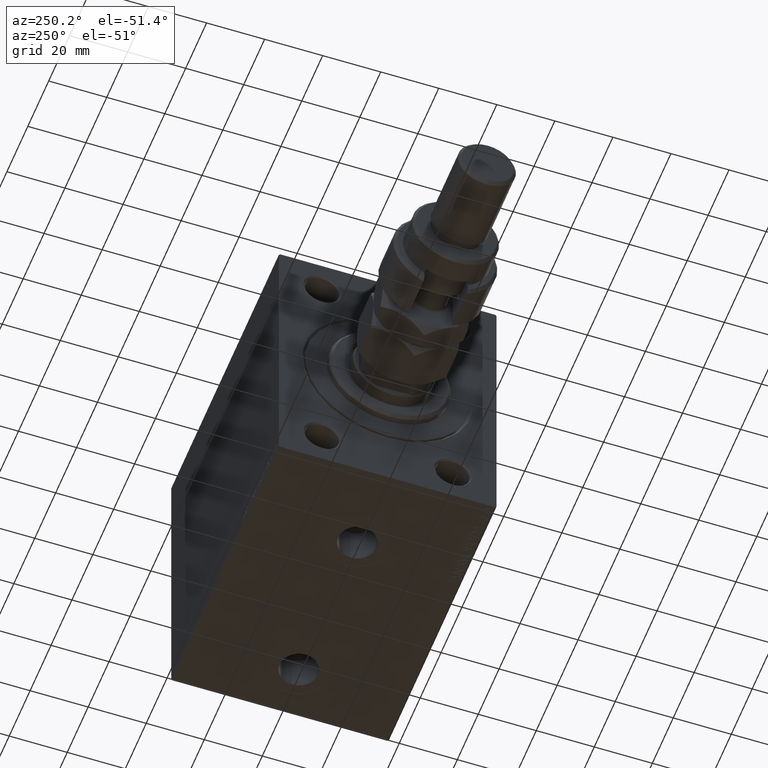
[diagram: clean part render]
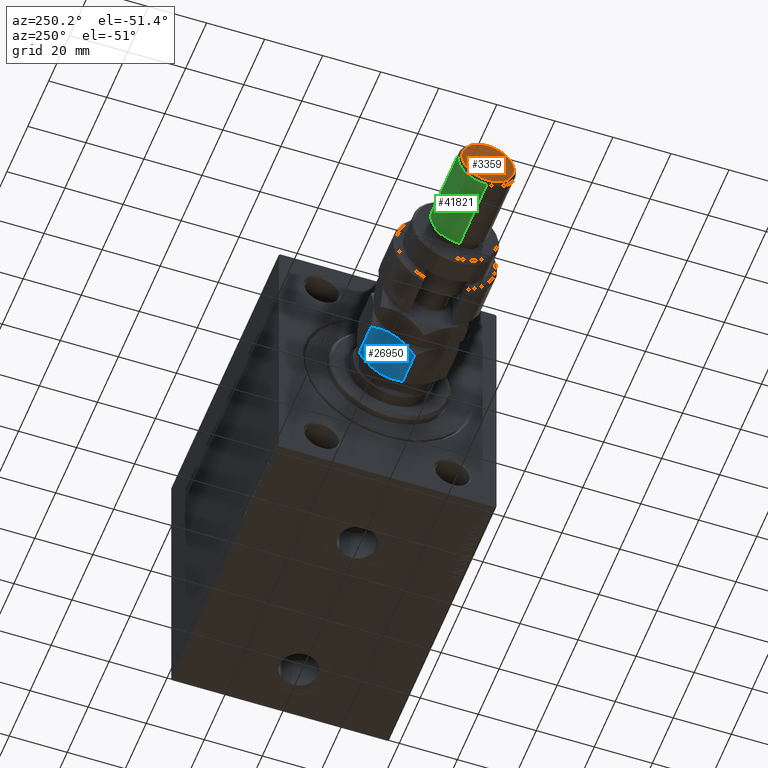
[diagram: same view with three faces highlighted in distinct colors, each labeled with its STEP entity id]
A machine part, auxiliary view with three faces highlighted in distinct colors.
Their STEP definitions:

[orange] entity #3359 — the highlighted planar face has unit normal (-1, 0, 0).
#9 = EDGE_CURVE ( 'NONE', #27824, #30673, #6786, .T. ) ;
#2491 = AXIS2_PLACEMENT_3D ( 'NONE', #33125, #48566, #14691 ) ;
#3359 = ADVANCED_FACE ( 'NONE', ( #46317 ), #12684, .T. ) ;
#6786 = CIRCLE ( 'NONE', #28704, 8.999999999999987566 ) ;
#7704 = ORIENTED_EDGE ( 'NONE', *, *, #46268, .T. ) ;
#8530 = DIRECTION ( 'NONE',  ( 0.000000000000000000, 0.000000000000000000, 1.000000000000000000 ) ) ;
#9668 = DIRECTION ( 'NONE',  ( 0.000000000000000000, 0.000000000000000000, 1.000000000000000000 ) ) ;
#12684 = PLANE ( 'NONE',  #43728 ) ;
#13329 = DIRECTION ( 'NONE',  ( 1.000000000000000000, 0.000000000000000000, 0.000000000000000000 ) ) ;
#14691 = DIRECTION ( 'NONE',  ( 1.000000000000000000, 0.000000000000000000, 0.000000000000000000 ) ) ;
#15629 = CARTESIAN_POINT ( 'NONE',  ( 0.000000000000000000, 0.000000000000000000, 56.00000000000000711 ) ) ;
#17159 = ORIENTED_EDGE ( 'NONE', *, *, #9, .T. ) ;
#23973 = DIRECTION ( 'NONE',  ( 1.000000000000000000, 0.000000000000000000, -0.000000000000000000 ) ) ;
#27824 = VERTEX_POINT ( 'NONE', #36424 ) ;
#28704 = AXIS2_PLACEMENT_3D ( 'NONE', #29014, #9668, #13329 ) ;
#29014 = CARTESIAN_POINT ( 'NONE',  ( 0.000000000000000000, 0.000000000000000000, 56.00000000000000711 ) ) ;
#30673 = VERTEX_POINT ( 'NONE', #36275 ) ;
#33125 = CARTESIAN_POINT ( 'NONE',  ( 0.000000000000000000, 0.000000000000000000, 56.00000000000000711 ) ) ;
#36275 = CARTESIAN_POINT ( 'NONE',  ( 8.999999999999987566, 1.163414459189984894E-15, 56.00000000000000711 ) ) ;
#36424 = CARTESIAN_POINT ( 'NONE',  ( -8.999999999999987566, 0.000000000000000000, 56.00000000000000711 ) ) ;
#39331 = CIRCLE ( 'NONE', #2491, 8.999999999999987566 ) ;
#40043 = EDGE_LOOP ( 'NONE', ( #17159, #7704 ) ) ;
#43728 = AXIS2_PLACEMENT_3D ( 'NONE', #15629, #8530, #23973 ) ;
#46268 = EDGE_CURVE ( 'NONE', #30673, #27824, #39331, .T. ) ;
#46317 = FACE_OUTER_BOUND ( 'NONE', #40043, .T. ) ;
#48566 = DIRECTION ( 'NONE',  ( 0.000000000000000000, 0.000000000000000000, 1.000000000000000000 ) ) ;

[blue] entity #26950 — the highlighted planar face has unit normal (0, -0.5, 0.866).
#220 = CARTESIAN_POINT ( 'NONE',  ( -15.00000000000000178, -0.3816858437404726523, 16.00000000000001066 ) ) ;
#1239 = EDGE_CURVE ( 'NONE', #27327, #4620, #3160, .T. ) ;
#2381 = VERTEX_POINT ( 'NONE', #19739 ) ;
#2800 = FACE_OUTER_BOUND ( 'NONE', #34739, .T. ) ;
#3041 = DIRECTION ( 'NONE',  ( 1.000000000000000000, 2.003086131649544964E-16, -0.000000000000000000 ) ) ;
#3160 = B_SPLINE_CURVE_WITH_KNOTS ( 'NONE', 3,
 ( #15188, #220, #41227, #29670, #26478, #37784, #40749, #29425, #30398, #34085, #7115, #19114 ),
 .UNSPECIFIED., .F., .F.,
 ( 4, 2, 2, 2, 2, 4 ),
 ( 0.03291042869972462398, 0.03403908204310903546, 0.03516773538649344694, 0.03742504207326226989, 0.03968234876003109979, 0.04193965544679992274 ),
 .UNSPECIFIED. ) ;
#3855 = B_SPLINE_CURVE_WITH_KNOTS ( 'NONE', 3,
 ( #14177, #29151, #37239, #22258, #18333, #33305, #7310, #29618, #44599, #44136, #25464, #10974 ),
 .UNSPECIFIED., .F., .F.,
 ( 4, 2, 2, 2, 2, 4 ),
 ( 0.03291042869972461704, 0.03403908204310903546, 0.03516773538649344694, 0.03742504207326227683, 0.03968234876003110673, 0.04193965544679993662 ),
 .UNSPECIFIED. ) ;
#4060 = VECTOR ( 'NONE', #8884, 1000.000000000000000 ) ;
#4620 = VERTEX_POINT ( 'NONE', #20713 ) ;
#4820 = CARTESIAN_POINT ( 'NONE',  ( -15.00000000000000000, -3.004629197474317274E-15, 0.000000000000000000 ) ) ;
#7115 = CARTESIAN_POINT ( 'NONE',  ( -14.99999999999999822, -7.987879721624087992, 14.01567908242139282 ) ) ;
#7310 = CARTESIAN_POINT ( 'NONE',  ( -15.00000000000000000, 3.735400403320778828, 0.4426250994506696901 ) ) ;
#8041 = CARTESIAN_POINT ( 'NONE',  ( -14.99999999999999467, -5.176035048062463062, 0.8528038385778453634 ) ) ;
#8503 = ORIENTED_EDGE ( 'NONE', *, *, #1239, .F. ) ;
#8884 = DIRECTION ( 'NONE',  ( -0.000000000000000000, -0.000000000000000000, -1.000000000000000000 ) ) ;
#10974 = CARTESIAN_POINT ( 'NONE',  ( -15.00000000000000000, 8.660254037844394404, 2.320508075688769711 ) ) ;
#11215 = CARTESIAN_POINT ( 'NONE',  ( -14.99999999999999645, -8.660254037844389075, 2.320508075688762606 ) ) ;
#12174 = CARTESIAN_POINT ( 'NONE',  ( -14.99999999999999645, -7.301344312447434426, 1.670136952686098741 ) ) ;
#12266 = EDGE_CURVE ( 'NONE', #4620, #39576, #33647, .T. ) ;
#14177 = CARTESIAN_POINT ( 'NONE',  ( -15.00000000000000000, -3.004629197474317274E-15, 0.000000000000000000 ) ) ;
#15188 = CARTESIAN_POINT ( 'NONE',  ( -14.99999999999999645, -3.004629197474316485E-15, 16.00000000000000000 ) ) ;
#15407 = B_SPLINE_CURVE_WITH_KNOTS ( 'NONE', 3,
 ( #11215, #26184, #12174, #19538, #8041, #30832, #34279, #4820 ),
 .UNSPECIFIED., .F., .F.,
 ( 4, 2, 2, 4 ),
 ( 0.02387628527307378290, 0.02613482112973649144, 0.02839335698639919997, 0.03291042869972461704 ),
 .UNSPECIFIED. ) ;
#15488 = VERTEX_POINT ( 'NONE', #33092 ) ;
#15979 = LINE ( 'NONE', #42255, #4060 ) ;
#17766 = DIRECTION ( 'NONE',  ( -2.003086131649544964E-16, 1.000000000000000000, 0.000000000000000000 ) ) ;
#18187 = ORIENTED_EDGE ( 'NONE', *, *, #12266, .F. ) ;
#18333 = CARTESIAN_POINT ( 'NONE',  ( -15.00000000000000000, 1.890862710942016633, 0.1142538058331583339 ) ) ;
#18428 = CARTESIAN_POINT ( 'NONE',  ( -14.99999999999999645, -8.660254037844389075, 16.00000000000000000 ) ) ;
#19114 = CARTESIAN_POINT ( 'NONE',  ( -14.99999999999999645, -8.660254037844389075, 13.67949192431124139 ) ) ;
#19538 = CARTESIAN_POINT ( 'NONE',  ( -14.99999999999999112, -5.891877557735397453, 1.102734500939527518 ) ) ;
#19547 = CARTESIAN_POINT ( 'NONE',  ( -14.99999999999999645, -8.660254037844389075, 2.320508075688762606 ) ) ;
#19739 = CARTESIAN_POINT ( 'NONE',  ( -15.00000000000000000, -3.004629197474317274E-15, 0.000000000000000000 ) ) ;
#20713 = CARTESIAN_POINT ( 'NONE',  ( -14.99999999999999645, -8.660254037844389075, 13.67949192431124139 ) ) ;
#21167 = VERTEX_POINT ( 'NONE', #22425 ) ;
#22258 = CARTESIAN_POINT ( 'NONE',  ( -15.00000000000000178, 1.516896874073655255, 0.07181722323989069012 ) ) ;
#22425 = CARTESIAN_POINT ( 'NONE',  ( -15.00000000000000000, 8.660254037844394404, 2.320508075688769711 ) ) ;
#22946 = CARTESIAN_POINT ( 'NONE',  ( -15.00000000000000000, 3.008020699068715054, 15.76423971609371222 ) ) ;
#24617 = ORIENTED_EDGE ( 'NONE', *, *, #47417, .F. ) ;
#24899 = PLANE ( 'NONE',  #43643 ) ;
#25464 = CARTESIAN_POINT ( 'NONE',  ( -14.99999999999999645, 7.987879721624096874, 1.984320917578621835 ) ) ;
#26184 = CARTESIAN_POINT ( 'NONE',  ( -14.99999999999999645, -7.987590979791842294, 1.984176546662486329 ) ) ;
#26478 = CARTESIAN_POINT ( 'NONE',  ( -14.99999999999999822, -1.890862710942014857, 15.88574619416684541 ) ) ;
#26479 = ORIENTED_EDGE ( 'NONE', *, *, #41317, .F. ) ;
#26618 = CARTESIAN_POINT ( 'NONE',  ( -15.00000000000000178, 7.301344312447437979, 14.32986304731390526 ) ) ;
#26950 = ADVANCED_FACE ( 'NONE', ( #2800 ), #24899, .F. ) ;
#27099 = CARTESIAN_POINT ( 'NONE',  ( -15.00000000000000000, 1.527574731641582639, 16.00000000000000711 ) ) ;
#27327 = VERTEX_POINT ( 'NONE', #45693 ) ;
#27434 = VECTOR ( 'NONE', #29248, 1000.000000000000000 ) ;
#29151 = CARTESIAN_POINT ( 'NONE',  ( -14.99999999999999822, 0.3816858437404692661, -3.491469808582225998E-15 ) ) ;
#29248 = DIRECTION ( 'NONE',  ( -0.000000000000000000, -0.000000000000000000, -1.000000000000000000 ) ) ;
#29425 = CARTESIAN_POINT ( 'NONE',  ( -14.99999999999999822, -5.178726290334378035, 15.14627300035556345 ) ) ;
#29618 = CARTESIAN_POINT ( 'NONE',  ( -15.00000000000000000, 5.178726290334382476, 0.8537269996444443176 ) ) ;
#29670 = CARTESIAN_POINT ( 'NONE',  ( -14.99999999999999822, -1.516896874073658807, 15.92818277676011007 ) ) ;
#30023 = B_SPLINE_CURVE_WITH_KNOTS ( 'NONE', 3,
 ( #41120, #37426, #26618, #41614, #42089, #22946, #27099, #34721 ),
 .UNSPECIFIED., .F., .F.,
 ( 4, 2, 2, 4 ),
 ( 0.02387628527307378290, 0.02613482112973649490, 0.02839335698639920344, 0.03291042869972462398 ),
 .UNSPECIFIED. ) ;
#30398 = CARTESIAN_POINT ( 'NONE',  ( -14.99999999999999467, -5.890999289811420958, 14.89758491968458820 ) ) ;
#30832 = CARTESIAN_POINT ( 'NONE',  ( -14.99999999999999645, -3.008020699068712389, 0.2357602839062925004 ) ) ;
#31998 = ORIENTED_EDGE ( 'NONE', *, *, #44844, .F. ) ;
#33092 = CARTESIAN_POINT ( 'NONE',  ( -15.00000000000000000, 8.660254037844392627, 13.67949192431123429 ) ) ;
#33305 = CARTESIAN_POINT ( 'NONE',  ( -15.00000000000000000, 3.004330627448767110, 0.2802888644511979388 ) ) ;
#33647 = LINE ( 'NONE', #18428, #27434 ) ;
#34085 = CARTESIAN_POINT ( 'NONE',  ( -14.99999999999999645, -7.300329060372325429, 14.33030584635917393 ) ) ;
#34279 = CARTESIAN_POINT ( 'NONE',  ( -15.00000000000000355, -1.527574731641586192, -3.659182332138578254E-15 ) ) ;
#34721 = CARTESIAN_POINT ( 'NONE',  ( -14.99999999999999645, -3.004629197474316485E-15, 16.00000000000000000 ) ) ;
#34739 = EDGE_LOOP ( 'NONE', ( #24617, #18187, #8503, #26479, #36126, #31998 ) ) ;
#36126 = ORIENTED_EDGE ( 'NONE', *, *, #46868, .T. ) ;
#37239 = CARTESIAN_POINT ( 'NONE',  ( -14.99999999999999822, 0.7629267201675393739, 0.01468466084192471960 ) ) ;
#37426 = CARTESIAN_POINT ( 'NONE',  ( -15.00000000000000000, 7.987590979791845847, 14.01582345333751789 ) ) ;
#37784 = CARTESIAN_POINT ( 'NONE',  ( -14.99999999999999645, -3.004330627448763114, 15.71971113554880972 ) ) ;
#39576 = VERTEX_POINT ( 'NONE', #19547 ) ;
#40749 = CARTESIAN_POINT ( 'NONE',  ( -14.99999999999999645, -3.735400403320779272, 15.55737490054933936 ) ) ;
#41120 = CARTESIAN_POINT ( 'NONE',  ( -15.00000000000000000, 8.660254037844392627, 13.67949192431123429 ) ) ;
#41227 = CARTESIAN_POINT ( 'NONE',  ( -15.00000000000000000, -0.7629267201675442589, 15.98531533915807579 ) ) ;
#41317 = EDGE_CURVE ( 'NONE', #15488, #27327, #30023, .T. ) ;
#41614 = CARTESIAN_POINT ( 'NONE',  ( -14.99999999999999822, 5.891877557735400117, 14.89726549906047381 ) ) ;
#42089 = CARTESIAN_POINT ( 'NONE',  ( -15.00000000000000000, 5.176035048062466615, 15.14719616142215308 ) ) ;
#42255 = CARTESIAN_POINT ( 'NONE',  ( -15.00000000000000000, 8.660254037844392627, 16.00000000000000000 ) ) ;
#43643 = AXIS2_PLACEMENT_3D ( 'NONE', #47251, #3041, #17766 ) ;
#44136 = CARTESIAN_POINT ( 'NONE',  ( -14.99999999999999822, 7.300329060372334311, 1.669694153640834955 ) ) ;
#44599 = CARTESIAN_POINT ( 'NONE',  ( -14.99999999999999822, 5.890999289811424511, 1.102415080315420015 ) ) ;
#44844 = EDGE_CURVE ( 'NONE', #2381, #21167, #3855, .T. ) ;
#45693 = CARTESIAN_POINT ( 'NONE',  ( -14.99999999999999645, -3.004629197474316485E-15, 16.00000000000000000 ) ) ;
#46868 = EDGE_CURVE ( 'NONE', #15488, #21167, #15979, .T. ) ;
#47251 = CARTESIAN_POINT ( 'NONE',  ( -15.00000000000000000, 8.660254037844392627, 16.00000000000000000 ) ) ;
#47417 = EDGE_CURVE ( 'NONE', #39576, #2381, #15407, .T. ) ;

[green] entity #41821 — the highlighted cylindrical surface (edge-blend (fillet) strip) has radius 10 mm, axis along (1, -0, -0).
#546 = CARTESIAN_POINT ( 'NONE',  ( -10.00000000000000000, 0.000000000000000000, 56.00000000000000711 ) ) ;
#1621 = AXIS2_PLACEMENT_3D ( 'NONE', #43897, #21540, #29154 ) ;
#2405 = EDGE_LOOP ( 'NONE', ( #24417, #9112, #15731, #41405 ) ) ;
#4533 = VECTOR ( 'NONE', #41380, 1000.000000000000000 ) ;
#6790 = EDGE_CURVE ( 'NONE', #40213, #19946, #44325, .T. ) ;
#9112 = ORIENTED_EDGE ( 'NONE', *, *, #6790, .T. ) ;
#10451 = EDGE_CURVE ( 'NONE', #19946, #27639, #46978, .T. ) ;
#12085 = LINE ( 'NONE', #546, #39256 ) ;
#14607 = EDGE_CURVE ( 'NONE', #46534, #40213, #32983, .T. ) ;
#15521 = DIRECTION ( 'NONE',  ( -0.000000000000000000, -0.000000000000000000, -1.000000000000000000 ) ) ;
#15731 = ORIENTED_EDGE ( 'NONE', *, *, #10451, .T. ) ;
#16981 = DIRECTION ( 'NONE',  ( -0.000000000000000000, -0.000000000000000000, 1.000000000000000000 ) ) ;
#18531 = CARTESIAN_POINT ( 'NONE',  ( 10.00000000000000000, 1.224646799147353256E-15, 56.00000000000000711 ) ) ;
#19946 = VERTEX_POINT ( 'NONE', #24976 ) ;
#21540 = DIRECTION ( 'NONE',  ( 0.000000000000000000, 0.000000000000000000, -1.000000000000000000 ) ) ;
#21765 = CARTESIAN_POINT ( 'NONE',  ( -10.00000000000000000, 0.000000000000000000, 54.99999999999998579 ) ) ;
#23616 = AXIS2_PLACEMENT_3D ( 'NONE', #24591, #46929, #35644 ) ;
#23620 = DIRECTION ( 'NONE',  ( 1.000000000000000000, 0.000000000000000000, 0.000000000000000000 ) ) ;
#24417 = ORIENTED_EDGE ( 'NONE', *, *, #14607, .T. ) ;
#24591 = CARTESIAN_POINT ( 'NONE',  ( 0.000000000000000000, 0.000000000000000000, 56.00000000000000711 ) ) ;
#24976 = CARTESIAN_POINT ( 'NONE',  ( 10.00000000000000000, 1.224646799147353256E-15, 29.00000000000000711 ) ) ;
#27331 = AXIS2_PLACEMENT_3D ( 'NONE', #31485, #16981, #23620 ) ;
#27639 = VERTEX_POINT ( 'NONE', #39248 ) ;
#29154 = DIRECTION ( 'NONE',  ( 1.000000000000000000, 0.000000000000000000, 0.000000000000000000 ) ) ;
#30486 = CARTESIAN_POINT ( 'NONE',  ( 10.00000000000000000, 1.224646799147353256E-15, 54.99999999999998579 ) ) ;
#31485 = CARTESIAN_POINT ( 'NONE',  ( 0.000000000000000000, 0.000000000000000000, 29.00000000000000711 ) ) ;
#32983 = CIRCLE ( 'NONE', #1621, 10.00000000000000000 ) ;
#35644 = DIRECTION ( 'NONE',  ( -1.000000000000000000, 0.000000000000000000, 0.000000000000000000 ) ) ;
#38599 = FACE_OUTER_BOUND ( 'NONE', #2405, .T. ) ;
#39248 = CARTESIAN_POINT ( 'NONE',  ( -10.00000000000000000, 0.000000000000000000, 29.00000000000000711 ) ) ;
#39256 = VECTOR ( 'NONE', #15521, 1000.000000000000000 ) ;
#40212 = EDGE_CURVE ( 'NONE', #46534, #27639, #12085, .T. ) ;
#40213 = VERTEX_POINT ( 'NONE', #30486 ) ;
#41380 = DIRECTION ( 'NONE',  ( -0.000000000000000000, -0.000000000000000000, -1.000000000000000000 ) ) ;
#41405 = ORIENTED_EDGE ( 'NONE', *, *, #40212, .F. ) ;
#41821 = ADVANCED_FACE ( 'NONE', ( #38599 ), #42537, .T. ) ;
#42537 = CYLINDRICAL_SURFACE ( 'NONE', #23616, 10.00000000000000000 ) ;
#43897 = CARTESIAN_POINT ( 'NONE',  ( 0.000000000000000000, 0.000000000000000000, 54.99999999999998579 ) ) ;
#44325 = LINE ( 'NONE', #18531, #4533 ) ;
#46534 = VERTEX_POINT ( 'NONE', #21765 ) ;
#46929 = DIRECTION ( 'NONE',  ( -0.000000000000000000, -0.000000000000000000, -1.000000000000000000 ) ) ;
#46978 = CIRCLE ( 'NONE', #27331, 10.00000000000000000 ) ;